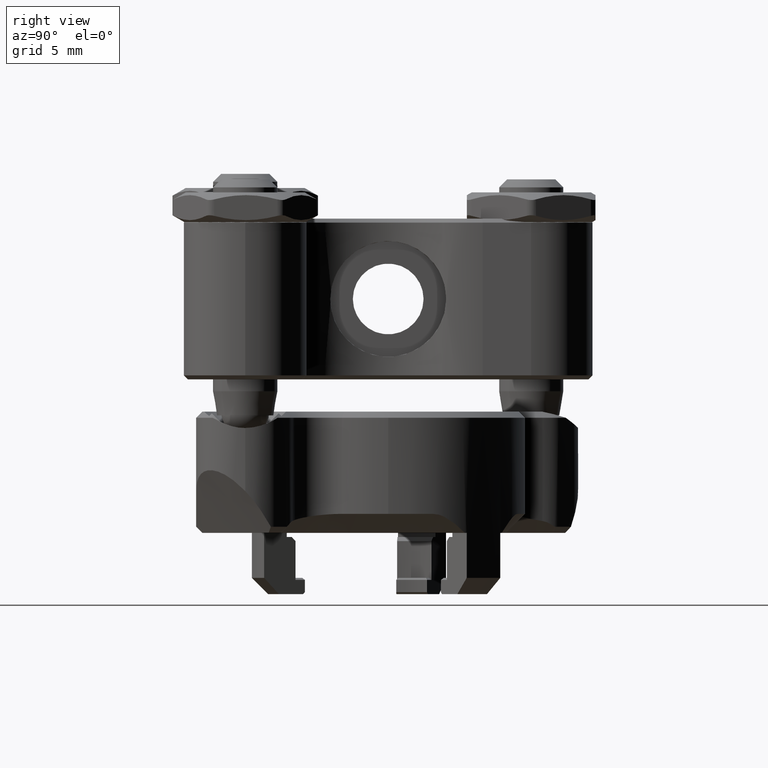
[diagram: clean part render]
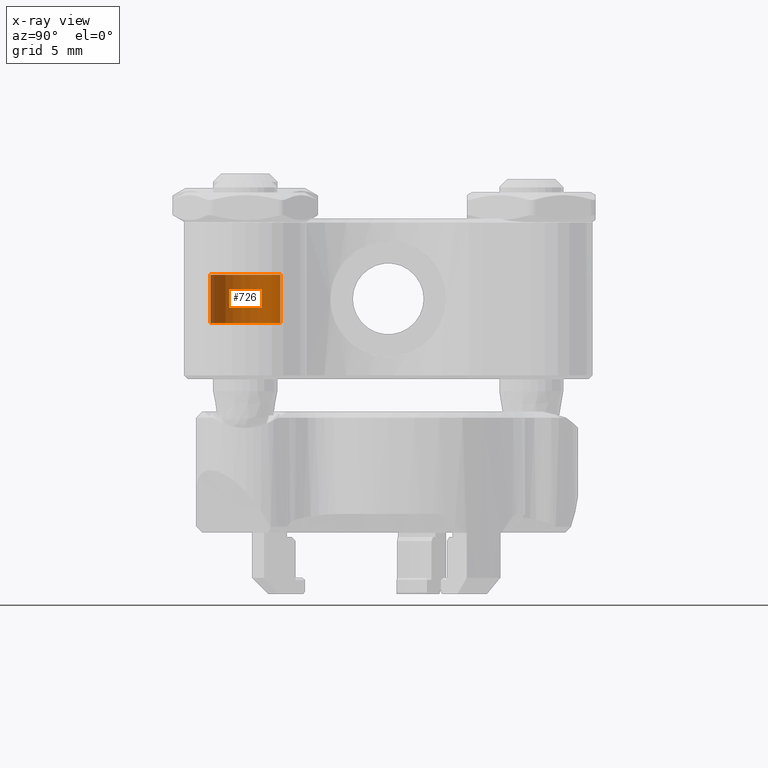
[diagram: x-ray — body ghosted, one internal face saturated and labeled with its STEP entity id]
A machine part, right view, then the same camera in x-ray: the body is ghosted and one INTERNAL B-rep face — a face not visible from any outside direction — is saturated and labeled: STEP entity #726.
In plain terms, the highlighted cylindrical surface (edge-blend (fillet) strip) has radius 2.175 mm, axis along (-0, 0, 1).
Its self-contained STEP definition (entity closure, byte-faithful):
#317 = CARTESIAN_POINT ( 'NONE',  ( -1.500000000000000000, -8.890000000000002345, -6.714999999999998970 ) ) ;
#726 = ADVANCED_FACE ( 'NONE', ( #6344 ), #2774, .F. ) ;
#1521 = ORIENTED_EDGE ( 'NONE', *, *, #8116, .T. ) ;
#1900 = DIRECTION ( 'NONE',  ( 1.000000000000000000, 0.000000000000000000, 0.000000000000000000 ) ) ;
#1948 = ORIENTED_EDGE ( 'NONE', *, *, #7134, .F. ) ;
#2774 = CYLINDRICAL_SURFACE ( 'NONE', #6863, 2.174999999999999822 ) ;
#3780 = DIRECTION ( 'NONE',  ( 1.000000000000000000, -0.000000000000000000, -0.000000000000000000 ) ) ;
#4444 = VERTEX_POINT ( 'NONE', #4859 ) ;
#4535 = LINE ( 'NONE', #5998, #7101 ) ;
#4859 = CARTESIAN_POINT ( 'NONE',  ( 1.500000000000000000, -8.890000000000002345, -6.714999999999998970 ) ) ;
#5306 = CARTESIAN_POINT ( 'NONE',  ( -1.500000000000000000, -8.890000000000002345, -8.889999999999998792 ) ) ;
#5443 = AXIS2_PLACEMENT_3D ( 'NONE', #5506, #6549, #9135 ) ;
#5506 = CARTESIAN_POINT ( 'NONE',  ( -1.500000000000000000, -8.890000000000002345, -8.889999999999998792 ) ) ;
#5926 = DIRECTION ( 'NONE',  ( 1.000000000000000000, -0.000000000000000000, -0.000000000000000000 ) ) ;
#5998 = CARTESIAN_POINT ( 'NONE',  ( -1.500000000000000000, -8.890000000000002345, -6.714999999999998970 ) ) ;
#6291 = LINE ( 'NONE', #11136, #7369 ) ;
#6344 = FACE_OUTER_BOUND ( 'NONE', #9887, .T. ) ;
#6549 = DIRECTION ( 'NONE',  ( 1.000000000000000000, 0.000000000000000000, 0.000000000000000000 ) ) ;
#6702 = EDGE_CURVE ( 'NONE', #11908, #4444, #4535, .T. ) ;
#6863 = AXIS2_PLACEMENT_3D ( 'NONE', #5306, #11276, #9172 ) ;
#6880 = DIRECTION ( 'NONE',  ( 0.000000000000000000, 0.000000000000000000, -1.000000000000000000 ) ) ;
#7027 = VERTEX_POINT ( 'NONE', #9692 ) ;
#7101 = VECTOR ( 'NONE', #5926, 1000.000000000000000 ) ;
#7134 = EDGE_CURVE ( 'NONE', #14769, #7027, #6291, .T. ) ;
#7369 = VECTOR ( 'NONE', #3780, 1000.000000000000000 ) ;
#8116 = EDGE_CURVE ( 'NONE', #4444, #7027, #12861, .T. ) ;
#8486 = CARTESIAN_POINT ( 'NONE',  ( -1.500000000000000000, -8.890000000000002345, -11.06499999999999773 ) ) ;
#9135 = DIRECTION ( 'NONE',  ( 0.000000000000000000, 0.000000000000000000, -1.000000000000000000 ) ) ;
#9172 = DIRECTION ( 'NONE',  ( 0.000000000000000000, 0.000000000000000000, -1.000000000000000000 ) ) ;
#9314 = ORIENTED_EDGE ( 'NONE', *, *, #14599, .F. ) ;
#9692 = CARTESIAN_POINT ( 'NONE',  ( 1.500000000000000000, -8.890000000000002345, -11.06499999999999773 ) ) ;
#9887 = EDGE_LOOP ( 'NONE', ( #9314, #12206, #1521, #1948 ) ) ;
#10339 = CIRCLE ( 'NONE', #5443, 2.174999999999999822 ) ;
#11136 = CARTESIAN_POINT ( 'NONE',  ( -1.500000000000000000, -8.890000000000002345, -11.06499999999999773 ) ) ;
#11276 = DIRECTION ( 'NONE',  ( 1.000000000000000000, -0.000000000000000000, -0.000000000000000000 ) ) ;
#11908 = VERTEX_POINT ( 'NONE', #317 ) ;
#12206 = ORIENTED_EDGE ( 'NONE', *, *, #6702, .T. ) ;
#12608 = AXIS2_PLACEMENT_3D ( 'NONE', #13044, #1900, #6880 ) ;
#12861 = CIRCLE ( 'NONE', #12608, 2.174999999999999822 ) ;
#13044 = CARTESIAN_POINT ( 'NONE',  ( 1.500000000000000000, -8.890000000000002345, -8.889999999999998792 ) ) ;
#14599 = EDGE_CURVE ( 'NONE', #11908, #14769, #10339, .T. ) ;
#14769 = VERTEX_POINT ( 'NONE', #8486 ) ;